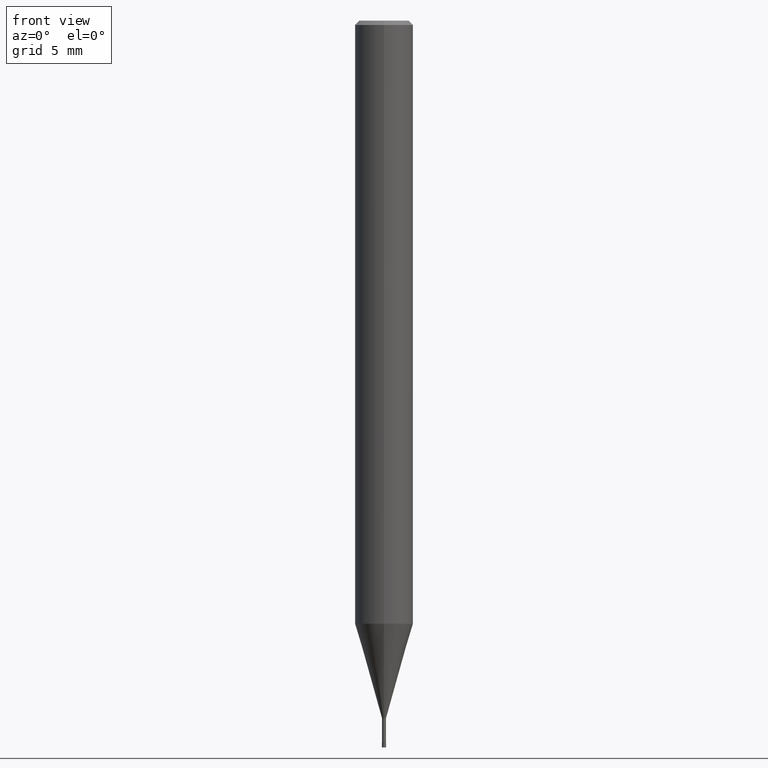
[diagram: clean part render]
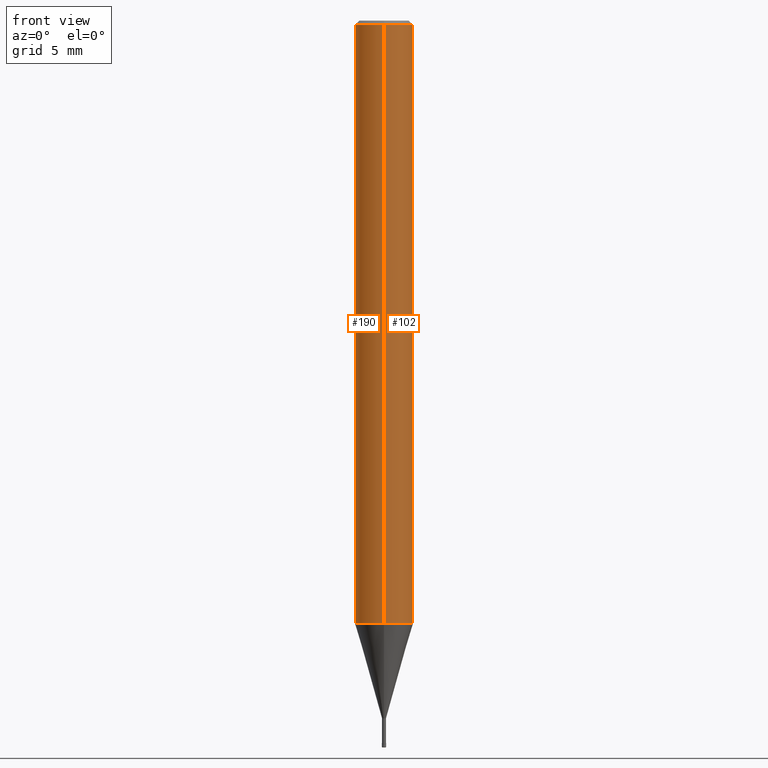
[diagram: same view with one multi-face feature highlighted, each face labeled with its STEP entity id]
A machine part, front view. The highlighted faces form ONE feature: a constant-radius fillet chain: 2 tangent blend faces with common blend radius 2 mm. The faces share edges in the B-rep.
Their STEP definitions:
[1] entity #102 (Cylinder):
#102=ADVANCED_FACE('',(#255),#256,.T.);
#132=VERTEX_POINT('',#290);
#142=VERTEX_POINT('',#302);
#176=EDGE_CURVE('',#132,#178,#339,.T.);
#178=VERTEX_POINT('',#341);
#196=EDGE_CURVE('',#226,#142,#362,.T.);
#212=EDGE_CURVE('',#178,#226,#382,.T.);
#226=VERTEX_POINT('',#397);
#230=EDGE_CURVE('',#132,#142,#401,.T.);
#255=FACE_OUTER_BOUND('',#418,.T.);
#256=CYLINDRICAL_SURFACE('',#419,2.0);
#290=CARTESIAN_POINT('',(0.0,2.0,-0.299999999999997));
#302=CARTESIAN_POINT('',(2.44921270764475E-016,-2.0,-0.299999999999997));
#339=LINE('',#521,#522);
#341=CARTESIAN_POINT('',(0.0,2.0,-41.496));
#362=LINE('',#551,#552);
#382=CIRCLE('',#576,2.0);
#397=CARTESIAN_POINT('',(2.44921270764475E-016,-2.0,-41.496));
#401=CIRCLE('',#601,2.0);
#418=EDGE_LOOP('',(#607,#608,#609,#610));
#419=AXIS2_PLACEMENT_3D('',#611,#612,#613);
#521=CARTESIAN_POINT('',(-2.44921270764475E-016,2.0,-20.898));
#522=VECTOR('',#722,1.0);
#551=CARTESIAN_POINT('',(2.44921270764475E-016,-2.0,-20.898));
#552=VECTOR('',#755,1.0);
#576=AXIS2_PLACEMENT_3D('',#784,#785,#786);
#601=AXIS2_PLACEMENT_3D('',#800,#801,#802);
#607=ORIENTED_EDGE('',*,*,#176,.F.);
#608=ORIENTED_EDGE('',*,*,#230,.T.);
#609=ORIENTED_EDGE('',*,*,#196,.F.);
#610=ORIENTED_EDGE('',*,*,#212,.F.);
#611=CARTESIAN_POINT('',(0.0,0.0,-20.898));
#612=DIRECTION('',(-0.0,-0.0,1.0));
#613=DIRECTION('',(0.0,1.0,0.0));
#722=DIRECTION('',(0.0,0.0,-1.0));
#755=DIRECTION('',(-0.0,-0.0,1.0));
#784=CARTESIAN_POINT('',(0.0,0.0,-41.496));
#785=DIRECTION('',(0.0,0.0,-1.0));
#786=DIRECTION('',(0.0,1.0,0.0));
#800=CARTESIAN_POINT('',(0.0,0.0,-0.299999999999997));
#801=DIRECTION('',(0.0,0.0,-1.0));
#802=DIRECTION('',(0.0,1.0,0.0));
[2] entity #190 (Cylinder):
#126=EDGE_CURVE('',#142,#132,#283,.T.);
#132=VERTEX_POINT('',#290);
#142=VERTEX_POINT('',#302);
#148=EDGE_CURVE('',#226,#178,#308,.T.);
#176=EDGE_CURVE('',#132,#178,#339,.T.);
#178=VERTEX_POINT('',#341);
#190=ADVANCED_FACE('',(#355),#356,.T.);
#196=EDGE_CURVE('',#226,#142,#362,.T.);
#226=VERTEX_POINT('',#397);
#283=CIRCLE('',#455,2.0);
#290=CARTESIAN_POINT('',(0.0,2.0,-0.299999999999997));
#302=CARTESIAN_POINT('',(2.44921270764475E-016,-2.0,-0.299999999999997));
#308=CIRCLE('',#485,2.0);
#339=LINE('',#521,#522);
#341=CARTESIAN_POINT('',(0.0,2.0,-41.496));
#355=FACE_OUTER_BOUND('',#542,.T.);
#356=CYLINDRICAL_SURFACE('',#543,2.0);
#362=LINE('',#551,#552);
#397=CARTESIAN_POINT('',(2.44921270764475E-016,-2.0,-41.496));
#455=AXIS2_PLACEMENT_3D('',#657,#658,#659);
#485=AXIS2_PLACEMENT_3D('',#690,#691,#692);
#521=CARTESIAN_POINT('',(-2.44921270764475E-016,2.0,-20.898));
#522=VECTOR('',#722,1.0);
#542=EDGE_LOOP('',(#745,#746,#747,#748));
#543=AXIS2_PLACEMENT_3D('',#749,#750,#751);
#551=CARTESIAN_POINT('',(2.44921270764475E-016,-2.0,-20.898));
#552=VECTOR('',#755,1.0);
#657=CARTESIAN_POINT('',(0.0,0.0,-0.299999999999997));
#658=DIRECTION('',(0.0,0.0,-1.0));
#659=DIRECTION('',(0.0,1.0,0.0));
#690=CARTESIAN_POINT('',(0.0,0.0,-41.496));
#691=DIRECTION('',(0.0,0.0,-1.0));
#692=DIRECTION('',(0.0,1.0,0.0));
#722=DIRECTION('',(0.0,0.0,-1.0));
#745=ORIENTED_EDGE('',*,*,#176,.T.);
#746=ORIENTED_EDGE('',*,*,#148,.F.);
#747=ORIENTED_EDGE('',*,*,#196,.T.);
#748=ORIENTED_EDGE('',*,*,#126,.T.);
#749=CARTESIAN_POINT('',(0.0,0.0,-20.898));
#750=DIRECTION('',(-0.0,-0.0,1.0));
#751=DIRECTION('',(0.0,1.0,0.0));
#755=DIRECTION('',(-0.0,-0.0,1.0));